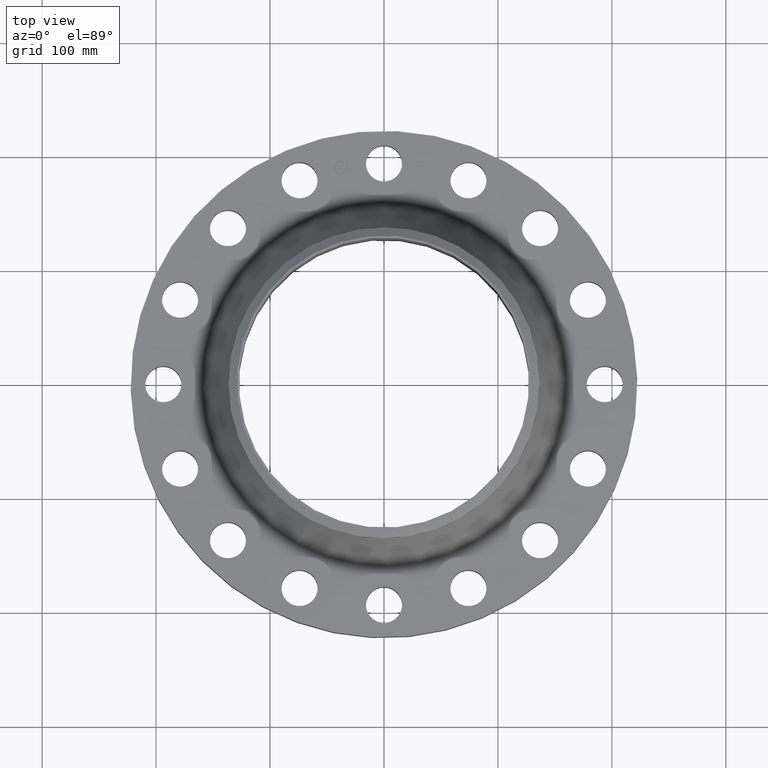
[diagram: clean part render]
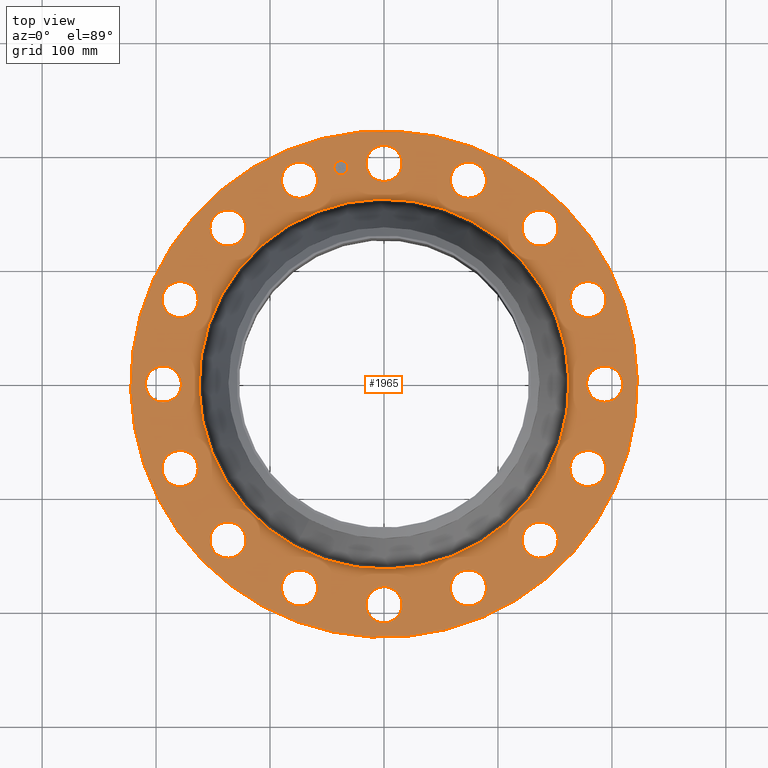
[diagram: same view with one face highlighted and labeled with its STEP entity id]
A machine part, top view. The second image highlights one B-rep face of the part: STEP entity #1965.
In plain terms, the highlighted planar face has unit normal (0, 0, -1).
Its self-contained STEP definition (entity closure, byte-faithful):
#65=AXIS2_PLACEMENT_3D('Circle Axis2P3D',#63,#64,$) ;
#89=AXIS2_PLACEMENT_3D('Circle Axis2P3D',#87,#88,$) ;
#123=AXIS2_PLACEMENT_3D('Circle Axis2P3D',#121,#122,$) ;
#147=AXIS2_PLACEMENT_3D('Circle Axis2P3D',#145,#146,$) ;
#164=AXIS2_PLACEMENT_3D('Circle Axis2P3D',#162,#163,$) ;
#199=AXIS2_PLACEMENT_3D('Circle Axis2P3D',#197,#198,$) ;
#999=AXIS2_PLACEMENT_3D('Circle Axis2P3D',#997,#998,$) ;
#1011=AXIS2_PLACEMENT_3D('Circle Axis2P3D',#1009,#1010,$) ;
#1043=AXIS2_PLACEMENT_3D('Circle Axis2P3D',#1041,#1042,$) ;
#1055=AXIS2_PLACEMENT_3D('Circle Axis2P3D',#1053,#1054,$) ;
#1087=AXIS2_PLACEMENT_3D('Circle Axis2P3D',#1085,#1086,$) ;
#1099=AXIS2_PLACEMENT_3D('Circle Axis2P3D',#1097,#1098,$) ;
#1131=AXIS2_PLACEMENT_3D('Circle Axis2P3D',#1129,#1130,$) ;
#1143=AXIS2_PLACEMENT_3D('Circle Axis2P3D',#1141,#1142,$) ;
#1175=AXIS2_PLACEMENT_3D('Circle Axis2P3D',#1173,#1174,$) ;
#1187=AXIS2_PLACEMENT_3D('Circle Axis2P3D',#1185,#1186,$) ;
#1219=AXIS2_PLACEMENT_3D('Circle Axis2P3D',#1217,#1218,$) ;
#1231=AXIS2_PLACEMENT_3D('Circle Axis2P3D',#1229,#1230,$) ;
#1263=AXIS2_PLACEMENT_3D('Circle Axis2P3D',#1261,#1262,$) ;
#1275=AXIS2_PLACEMENT_3D('Circle Axis2P3D',#1273,#1274,$) ;
#1307=AXIS2_PLACEMENT_3D('Circle Axis2P3D',#1305,#1306,$) ;
#1319=AXIS2_PLACEMENT_3D('Circle Axis2P3D',#1317,#1318,$) ;
#1351=AXIS2_PLACEMENT_3D('Circle Axis2P3D',#1349,#1350,$) ;
#1363=AXIS2_PLACEMENT_3D('Circle Axis2P3D',#1361,#1362,$) ;
#1395=AXIS2_PLACEMENT_3D('Circle Axis2P3D',#1393,#1394,$) ;
#1407=AXIS2_PLACEMENT_3D('Circle Axis2P3D',#1405,#1406,$) ;
#1439=AXIS2_PLACEMENT_3D('Circle Axis2P3D',#1437,#1438,$) ;
#1451=AXIS2_PLACEMENT_3D('Circle Axis2P3D',#1449,#1450,$) ;
#1483=AXIS2_PLACEMENT_3D('Circle Axis2P3D',#1481,#1482,$) ;
#1495=AXIS2_PLACEMENT_3D('Circle Axis2P3D',#1493,#1494,$) ;
#1527=AXIS2_PLACEMENT_3D('Circle Axis2P3D',#1525,#1526,$) ;
#1539=AXIS2_PLACEMENT_3D('Circle Axis2P3D',#1537,#1538,$) ;
#1571=AXIS2_PLACEMENT_3D('Circle Axis2P3D',#1569,#1570,$) ;
#1583=AXIS2_PLACEMENT_3D('Circle Axis2P3D',#1581,#1582,$) ;
#1615=AXIS2_PLACEMENT_3D('Circle Axis2P3D',#1613,#1614,$) ;
#1627=AXIS2_PLACEMENT_3D('Circle Axis2P3D',#1625,#1626,$) ;
#1873=AXIS2_PLACEMENT_3D('Plane Axis2P3D',#1870,#1871,#1872) ;
#1949=AXIS2_PLACEMENT_3D('Circle Axis2P3D',#1947,#1948,$) ;
#1958=AXIS2_PLACEMENT_3D('Circle Axis2P3D',#1956,#1957,$) ;
#46=CARTESIAN_POINT('Vertex',(-0.548489101184,7.92464096166,2.12000000001)) ;
#60=CARTESIAN_POINT('Vertex',(0.548489101184,7.3253590384,2.12000000001)) ;
#63=CARTESIAN_POINT('Axis2P3D Location',(0.,7.62500000003,2.12000000001)) ;
#87=CARTESIAN_POINT('Axis2P3D Location',(0.,7.62500000003,2.12000000001)) ;
#118=CARTESIAN_POINT('Vertex',(-4.1949734628,-7.67884741657,2.12000000001)) ;
#121=CARTESIAN_POINT('Axis2P3D Location',(0.,0.,2.12000000001)) ;
#125=CARTESIAN_POINT('Vertex',(4.1949734628,7.67884741657,2.12000000001)) ;
#145=CARTESIAN_POINT('Axis2P3D Location',(0.,0.,2.12000000001)) ;
#162=CARTESIAN_POINT('Axis2P3D Location',(0.,0.,2.12000000001)) ;
#166=CARTESIAN_POINT('Vertex',(3.06391680876,5.60846209879,2.12000000001)) ;
#168=CARTESIAN_POINT('Vertex',(-3.06391680876,-5.60846209879,2.12000000001)) ;
#197=CARTESIAN_POINT('Axis2P3D Location',(0.,0.,2.12000000001)) ;
#987=CARTESIAN_POINT('Vertex',(0.548489101184,-7.92464096166,2.12000000001)) ;
#994=CARTESIAN_POINT('Vertex',(-0.548489101184,-7.3253590384,2.12000000001)) ;
#997=CARTESIAN_POINT('Axis2P3D Location',(9.33793184354E-016,-7.62500000003,2.12000000001)) ;
#1009=CARTESIAN_POINT('Axis2P3D Location',(9.33793184354E-016,-7.62500000003,2.12000000001)) ;
#1031=CARTESIAN_POINT('Vertex',(-3.53936665786,7.11151589512,2.12000000001)) ;
#1038=CARTESIAN_POINT('Vertex',(-2.29655568573,6.97764697573,2.12000000001)) ;
#1041=CARTESIAN_POINT('Axis2P3D Location',(-2.9179611718,7.04458143543,2.12000000001)) ;
#1053=CARTESIAN_POINT('Axis2P3D Location',(-2.9179611718,7.04458143543,2.12000000001)) ;
#1075=CARTESIAN_POINT('Vertex',(3.53936665786,-7.11151589512,2.12000000001)) ;
#1082=CARTESIAN_POINT('Vertex',(2.29655568573,-6.97764697573,2.12000000001)) ;
#1085=CARTESIAN_POINT('Axis2P3D Location',(2.9179611718,-7.04458143543,2.12000000001)) ;
#1097=CARTESIAN_POINT('Axis2P3D Location',(2.9179611718,-7.04458143543,2.12000000001)) ;
#1119=CARTESIAN_POINT('Vertex',(2.52589094908,7.53131127883,2.12000000001)) ;
#1126=CARTESIAN_POINT('Vertex',(3.31003139451,6.55785159202,2.12000000001)) ;
#1129=CARTESIAN_POINT('Axis2P3D Location',(2.9179611718,7.04458143543,2.12000000001)) ;
#1141=CARTESIAN_POINT('Axis2P3D Location',(2.9179611718,7.04458143543,2.12000000001)) ;
#1163=CARTESIAN_POINT('Vertex',(-7.92464096166,-0.548489101184,2.12000000001)) ;
#1170=CARTESIAN_POINT('Vertex',(-7.3253590384,0.548489101184,2.12000000001)) ;
#1173=CARTESIAN_POINT('Axis2P3D Location',(-7.62500000003,-2.51965471474E-015,2.12000000001)) ;
#1185=CARTESIAN_POINT('Axis2P3D Location',(-7.62500000003,-2.51965471474E-015,2.12000000001)) ;
#1207=CARTESIAN_POINT('Vertex',(-7.53131127883,2.52589094908,2.12000000001)) ;
#1214=CARTESIAN_POINT('Vertex',(-6.55785159202,3.31003139451,2.12000000001)) ;
#1217=CARTESIAN_POINT('Axis2P3D Location',(-7.04458143543,2.9179611718,2.12000000001)) ;
#1229=CARTESIAN_POINT('Axis2P3D Location',(-7.04458143543,2.9179611718,2.12000000001)) ;
#1251=CARTESIAN_POINT('Vertex',(-5.2157269996,-5.99140772531,2.12000000001)) ;
#1258=CARTESIAN_POINT('Vertex',(-5.56765141353,-4.79197068783,2.12000000001)) ;
#1261=CARTESIAN_POINT('Axis2P3D Location',(-5.39168920657,-5.39168920657,2.12000000001)) ;
#1273=CARTESIAN_POINT('Axis2P3D Location',(-5.39168920657,-5.39168920657,2.12000000001)) ;
#1295=CARTESIAN_POINT('Vertex',(7.11151589512,3.53936665786,2.12000000001)) ;
#1302=CARTESIAN_POINT('Vertex',(6.97764697573,2.29655568573,2.12000000001)) ;
#1305=CARTESIAN_POINT('Axis2P3D Location',(7.04458143543,2.9179611718,2.12000000001)) ;
#1317=CARTESIAN_POINT('Axis2P3D Location',(7.04458143543,2.9179611718,2.12000000001)) ;
#1339=CARTESIAN_POINT('Vertex',(-5.99140772531,5.2157269996,2.12000000001)) ;
#1346=CARTESIAN_POINT('Vertex',(-4.79197068783,5.56765141353,2.12000000001)) ;
#1349=CARTESIAN_POINT('Axis2P3D Location',(-5.39168920657,5.39168920657,2.12000000001)) ;
#1361=CARTESIAN_POINT('Axis2P3D Location',(-5.39168920657,5.39168920657,2.12000000001)) ;
#1383=CARTESIAN_POINT('Vertex',(7.92464096166,0.548489101184,2.12000000001)) ;
#1390=CARTESIAN_POINT('Vertex',(7.3253590384,-0.548489101184,2.12000000001)) ;
#1393=CARTESIAN_POINT('Axis2P3D Location',(7.62500000003,4.66896592177E-016,2.12000000001)) ;
#1405=CARTESIAN_POINT('Axis2P3D Location',(7.62500000003,4.66896592177E-016,2.12000000001)) ;
#1427=CARTESIAN_POINT('Vertex',(-2.52589094908,-7.53131127883,2.12000000001)) ;
#1434=CARTESIAN_POINT('Vertex',(-3.31003139451,-6.55785159202,2.12000000001)) ;
#1437=CARTESIAN_POINT('Axis2P3D Location',(-2.9179611718,-7.04458143543,2.12000000001)) ;
#1449=CARTESIAN_POINT('Axis2P3D Location',(-2.9179611718,-7.04458143543,2.12000000001)) ;
#1471=CARTESIAN_POINT('Vertex',(7.53131127883,-2.52589094908,2.12000000001)) ;
#1478=CARTESIAN_POINT('Vertex',(6.55785159202,-3.31003139451,2.12000000001)) ;
#1481=CARTESIAN_POINT('Axis2P3D Location',(7.04458143543,-2.9179611718,2.12000000001)) ;
#1493=CARTESIAN_POINT('Axis2P3D Location',(7.04458143543,-2.9179611718,2.12000000001)) ;
#1515=CARTESIAN_POINT('Vertex',(-7.11151589512,-3.53936665786,2.12000000001)) ;
#1522=CARTESIAN_POINT('Vertex',(-6.97764697573,-2.29655568573,2.12000000001)) ;
#1525=CARTESIAN_POINT('Axis2P3D Location',(-7.04458143543,-2.9179611718,2.12000000001)) ;
#1537=CARTESIAN_POINT('Axis2P3D Location',(-7.04458143543,-2.9179611718,2.12000000001)) ;
#1559=CARTESIAN_POINT('Vertex',(5.99140772531,-5.2157269996,2.12000000001)) ;
#1566=CARTESIAN_POINT('Vertex',(4.79197068783,-5.56765141353,2.12000000001)) ;
#1569=CARTESIAN_POINT('Axis2P3D Location',(5.39168920657,-5.39168920657,2.12000000001)) ;
#1581=CARTESIAN_POINT('Axis2P3D Location',(5.39168920657,-5.39168920657,2.12000000001)) ;
#1603=CARTESIAN_POINT('Vertex',(5.2157269996,5.99140772531,2.12000000001)) ;
#1610=CARTESIAN_POINT('Vertex',(5.56765141353,4.79197068783,2.12000000001)) ;
#1613=CARTESIAN_POINT('Axis2P3D Location',(5.39168920657,5.39168920657,2.12000000001)) ;
#1625=CARTESIAN_POINT('Axis2P3D Location',(5.39168920657,5.39168920657,2.12000000001)) ;
#1870=CARTESIAN_POINT('Axis2P3D Location',(0.,8.75000000003,2.12000000001)) ;
#1947=CARTESIAN_POINT('Axis2P3D Location',(-1.48756370538,7.4784877631,2.12000000001)) ;
#1951=CARTESIAN_POINT('Vertex',(-1.73030806228,7.43020290841,2.12000000001)) ;
#1953=CARTESIAN_POINT('Vertex',(-1.24481934848,7.5267726178,2.12000000001)) ;
#1956=CARTESIAN_POINT('Axis2P3D Location',(-1.48756370538,7.4784877631,2.12000000001)) ;
#64=DIRECTION('Axis2P3D Direction',(0.,-0.,-0.0393700787402)) ;
#88=DIRECTION('Axis2P3D Direction',(0.,-0.,-0.0393700787402)) ;
#122=DIRECTION('Axis2P3D Direction',(0.,0.,-0.0393700787402)) ;
#146=DIRECTION('Axis2P3D Direction',(0.,0.,-0.0393700787402)) ;
#163=DIRECTION('Axis2P3D Direction',(0.,0.,-0.0393700787402)) ;
#198=DIRECTION('Axis2P3D Direction',(0.,0.,-0.0393700787402)) ;
#998=DIRECTION('Axis2P3D Direction',(-0.,0.,-0.0393700787402)) ;
#1010=DIRECTION('Axis2P3D Direction',(-0.,0.,-0.0393700787402)) ;
#1042=DIRECTION('Axis2P3D Direction',(0.,0.,-0.0393700787402)) ;
#1054=DIRECTION('Axis2P3D Direction',(0.,0.,-0.0393700787402)) ;
#1086=DIRECTION('Axis2P3D Direction',(-0.,0.,-0.0393700787402)) ;
#1098=DIRECTION('Axis2P3D Direction',(-0.,0.,-0.0393700787402)) ;
#1130=DIRECTION('Axis2P3D Direction',(0.,-0.,-0.0393700787402)) ;
#1142=DIRECTION('Axis2P3D Direction',(0.,-0.,-0.0393700787402)) ;
#1174=DIRECTION('Axis2P3D Direction',(0.,0.,-0.0393700787402)) ;
#1186=DIRECTION('Axis2P3D Direction',(0.,0.,-0.0393700787402)) ;
#1218=DIRECTION('Axis2P3D Direction',(0.,0.,-0.0393700787402)) ;
#1230=DIRECTION('Axis2P3D Direction',(0.,0.,-0.0393700787402)) ;
#1262=DIRECTION('Axis2P3D Direction',(0.,0.,-0.0393700787402)) ;
#1274=DIRECTION('Axis2P3D Direction',(0.,0.,-0.0393700787402)) ;
#1306=DIRECTION('Axis2P3D Direction',(0.,-0.,-0.0393700787402)) ;
#1318=DIRECTION('Axis2P3D Direction',(0.,-0.,-0.0393700787402)) ;
#1350=DIRECTION('Axis2P3D Direction',(0.,0.,-0.0393700787402)) ;
#1362=DIRECTION('Axis2P3D Direction',(0.,0.,-0.0393700787402)) ;
#1394=DIRECTION('Axis2P3D Direction',(0.,-0.,-0.0393700787402)) ;
#1406=DIRECTION('Axis2P3D Direction',(0.,-0.,-0.0393700787402)) ;
#1438=DIRECTION('Axis2P3D Direction',(0.,0.,-0.0393700787402)) ;
#1450=DIRECTION('Axis2P3D Direction',(0.,0.,-0.0393700787402)) ;
#1482=DIRECTION('Axis2P3D Direction',(-0.,0.,-0.0393700787402)) ;
#1494=DIRECTION('Axis2P3D Direction',(-0.,0.,-0.0393700787402)) ;
#1526=DIRECTION('Axis2P3D Direction',(0.,0.,-0.0393700787402)) ;
#1538=DIRECTION('Axis2P3D Direction',(0.,0.,-0.0393700787402)) ;
#1570=DIRECTION('Axis2P3D Direction',(-0.,0.,-0.0393700787402)) ;
#1582=DIRECTION('Axis2P3D Direction',(-0.,0.,-0.0393700787402)) ;
#1614=DIRECTION('Axis2P3D Direction',(0.,-0.,-0.0393700787402)) ;
#1626=DIRECTION('Axis2P3D Direction',(0.,-0.,-0.0393700787402)) ;
#1871=DIRECTION('Axis2P3D Direction',(0.,0.,-0.0393700787402)) ;
#1872=DIRECTION('Axis2P3D XDirection',(0.0393700787402,0.,0.)) ;
#1948=DIRECTION('Axis2P3D Direction',(0.,0.,-0.0393700787402)) ;
#1957=DIRECTION('Axis2P3D Direction',(0.,0.,-0.0393700787402)) ;
#1876=ORIENTED_EDGE('',*,*,#149,.F.) ;
#1877=ORIENTED_EDGE('',*,*,#127,.F.) ;
#1880=ORIENTED_EDGE('',*,*,#67,.T.) ;
#1881=ORIENTED_EDGE('',*,*,#91,.T.) ;
#1884=ORIENTED_EDGE('',*,*,#201,.T.) ;
#1885=ORIENTED_EDGE('',*,*,#170,.T.) ;
#1888=ORIENTED_EDGE('',*,*,#1145,.T.) ;
#1889=ORIENTED_EDGE('',*,*,#1133,.T.) ;
#1892=ORIENTED_EDGE('',*,*,#1629,.T.) ;
#1893=ORIENTED_EDGE('',*,*,#1617,.T.) ;
#1896=ORIENTED_EDGE('',*,*,#1321,.T.) ;
#1897=ORIENTED_EDGE('',*,*,#1309,.T.) ;
#1900=ORIENTED_EDGE('',*,*,#1409,.T.) ;
#1901=ORIENTED_EDGE('',*,*,#1397,.T.) ;
#1904=ORIENTED_EDGE('',*,*,#1497,.T.) ;
#1905=ORIENTED_EDGE('',*,*,#1485,.T.) ;
#1908=ORIENTED_EDGE('',*,*,#1585,.T.) ;
#1909=ORIENTED_EDGE('',*,*,#1573,.T.) ;
#1912=ORIENTED_EDGE('',*,*,#1101,.T.) ;
#1913=ORIENTED_EDGE('',*,*,#1089,.T.) ;
#1916=ORIENTED_EDGE('',*,*,#1013,.T.) ;
#1917=ORIENTED_EDGE('',*,*,#1001,.T.) ;
#1920=ORIENTED_EDGE('',*,*,#1453,.T.) ;
#1921=ORIENTED_EDGE('',*,*,#1441,.T.) ;
#1924=ORIENTED_EDGE('',*,*,#1277,.T.) ;
#1925=ORIENTED_EDGE('',*,*,#1265,.T.) ;
#1928=ORIENTED_EDGE('',*,*,#1541,.T.) ;
#1929=ORIENTED_EDGE('',*,*,#1529,.T.) ;
#1932=ORIENTED_EDGE('',*,*,#1189,.T.) ;
#1933=ORIENTED_EDGE('',*,*,#1177,.T.) ;
#1936=ORIENTED_EDGE('',*,*,#1233,.T.) ;
#1937=ORIENTED_EDGE('',*,*,#1221,.T.) ;
#1940=ORIENTED_EDGE('',*,*,#1365,.T.) ;
#1941=ORIENTED_EDGE('',*,*,#1353,.T.) ;
#1944=ORIENTED_EDGE('',*,*,#1057,.T.) ;
#1945=ORIENTED_EDGE('',*,*,#1045,.T.) ;
#1962=ORIENTED_EDGE('',*,*,#1955,.T.) ;
#1963=ORIENTED_EDGE('',*,*,#1960,.T.) ;
#1882=FACE_BOUND('',#1879,.T.) ;
#1886=FACE_BOUND('',#1883,.T.) ;
#1890=FACE_BOUND('',#1887,.T.) ;
#1894=FACE_BOUND('',#1891,.T.) ;
#1898=FACE_BOUND('',#1895,.T.) ;
#1902=FACE_BOUND('',#1899,.T.) ;
#1906=FACE_BOUND('',#1903,.T.) ;
#1910=FACE_BOUND('',#1907,.T.) ;
#1914=FACE_BOUND('',#1911,.T.) ;
#1918=FACE_BOUND('',#1915,.T.) ;
#1922=FACE_BOUND('',#1919,.T.) ;
#1926=FACE_BOUND('',#1923,.T.) ;
#1930=FACE_BOUND('',#1927,.T.) ;
#1934=FACE_BOUND('',#1931,.T.) ;
#1938=FACE_BOUND('',#1935,.T.) ;
#1942=FACE_BOUND('',#1939,.T.) ;
#1946=FACE_BOUND('',#1943,.T.) ;
#1964=FACE_BOUND('',#1961,.T.) ;
#1965=ADVANCED_FACE('PartBody',(#1878,#1882,#1886,#1890,#1894,#1898,#1902,#1906,#1910,#1914,#1918,#1922,#1926,#1930,#1934,#1938,#1942,#1946,#1964),#1874,.F.) ;
#66=CIRCLE('generated circle',#65,0.625000000003) ;
#90=CIRCLE('generated circle',#89,0.625000000003) ;
#124=CIRCLE('generated circle',#123,8.75000000003) ;
#148=CIRCLE('generated circle',#147,8.75000000003) ;
#165=CIRCLE('generated circle',#164,6.3908085032) ;
#200=CIRCLE('generated circle',#199,6.3908085032) ;
#1000=CIRCLE('generated circle',#999,0.625000000003) ;
#1012=CIRCLE('generated circle',#1011,0.625000000003) ;
#1044=CIRCLE('generated circle',#1043,0.625000000002) ;
#1056=CIRCLE('generated circle',#1055,0.625000000002) ;
#1088=CIRCLE('generated circle',#1087,0.625000000003) ;
#1100=CIRCLE('generated circle',#1099,0.625000000003) ;
#1132=CIRCLE('generated circle',#1131,0.625000000003) ;
#1144=CIRCLE('generated circle',#1143,0.625000000003) ;
#1176=CIRCLE('generated circle',#1175,0.625000000003) ;
#1188=CIRCLE('generated circle',#1187,0.625000000003) ;
#1220=CIRCLE('generated circle',#1219,0.625000000003) ;
#1232=CIRCLE('generated circle',#1231,0.625000000003) ;
#1264=CIRCLE('generated circle',#1263,0.625000000002) ;
#1276=CIRCLE('generated circle',#1275,0.625000000002) ;
#1308=CIRCLE('generated circle',#1307,0.625000000003) ;
#1320=CIRCLE('generated circle',#1319,0.625000000003) ;
#1352=CIRCLE('generated circle',#1351,0.625000000002) ;
#1364=CIRCLE('generated circle',#1363,0.625000000002) ;
#1396=CIRCLE('generated circle',#1395,0.625000000003) ;
#1408=CIRCLE('generated circle',#1407,0.625000000003) ;
#1440=CIRCLE('generated circle',#1439,0.625000000002) ;
#1452=CIRCLE('generated circle',#1451,0.625000000002) ;
#1484=CIRCLE('generated circle',#1483,0.625000000002) ;
#1496=CIRCLE('generated circle',#1495,0.625000000002) ;
#1528=CIRCLE('generated circle',#1527,0.625000000002) ;
#1540=CIRCLE('generated circle',#1539,0.625000000002) ;
#1572=CIRCLE('generated circle',#1571,0.625000000002) ;
#1584=CIRCLE('generated circle',#1583,0.625000000002) ;
#1616=CIRCLE('generated circle',#1615,0.625000000002) ;
#1628=CIRCLE('generated circle',#1627,0.625000000002) ;
#1950=CIRCLE('generated circle',#1949,0.247500000001) ;
#1959=CIRCLE('generated circle',#1958,0.247500000001) ;
#67=EDGE_CURVE('',#47,#61,#66,.T.) ;
#91=EDGE_CURVE('',#61,#47,#90,.T.) ;
#127=EDGE_CURVE('',#119,#126,#124,.T.) ;
#149=EDGE_CURVE('',#126,#119,#148,.T.) ;
#170=EDGE_CURVE('',#167,#169,#165,.T.) ;
#201=EDGE_CURVE('',#169,#167,#200,.T.) ;
#1001=EDGE_CURVE('',#988,#995,#1000,.T.) ;
#1013=EDGE_CURVE('',#995,#988,#1012,.T.) ;
#1045=EDGE_CURVE('',#1032,#1039,#1044,.T.) ;
#1057=EDGE_CURVE('',#1039,#1032,#1056,.T.) ;
#1089=EDGE_CURVE('',#1076,#1083,#1088,.T.) ;
#1101=EDGE_CURVE('',#1083,#1076,#1100,.T.) ;
#1133=EDGE_CURVE('',#1120,#1127,#1132,.T.) ;
#1145=EDGE_CURVE('',#1127,#1120,#1144,.T.) ;
#1177=EDGE_CURVE('',#1164,#1171,#1176,.T.) ;
#1189=EDGE_CURVE('',#1171,#1164,#1188,.T.) ;
#1221=EDGE_CURVE('',#1208,#1215,#1220,.T.) ;
#1233=EDGE_CURVE('',#1215,#1208,#1232,.T.) ;
#1265=EDGE_CURVE('',#1252,#1259,#1264,.T.) ;
#1277=EDGE_CURVE('',#1259,#1252,#1276,.T.) ;
#1309=EDGE_CURVE('',#1296,#1303,#1308,.T.) ;
#1321=EDGE_CURVE('',#1303,#1296,#1320,.T.) ;
#1353=EDGE_CURVE('',#1340,#1347,#1352,.T.) ;
#1365=EDGE_CURVE('',#1347,#1340,#1364,.T.) ;
#1397=EDGE_CURVE('',#1384,#1391,#1396,.T.) ;
#1409=EDGE_CURVE('',#1391,#1384,#1408,.T.) ;
#1441=EDGE_CURVE('',#1428,#1435,#1440,.T.) ;
#1453=EDGE_CURVE('',#1435,#1428,#1452,.T.) ;
#1485=EDGE_CURVE('',#1472,#1479,#1484,.T.) ;
#1497=EDGE_CURVE('',#1479,#1472,#1496,.T.) ;
#1529=EDGE_CURVE('',#1516,#1523,#1528,.T.) ;
#1541=EDGE_CURVE('',#1523,#1516,#1540,.T.) ;
#1573=EDGE_CURVE('',#1560,#1567,#1572,.T.) ;
#1585=EDGE_CURVE('',#1567,#1560,#1584,.T.) ;
#1617=EDGE_CURVE('',#1604,#1611,#1616,.T.) ;
#1629=EDGE_CURVE('',#1611,#1604,#1628,.T.) ;
#1955=EDGE_CURVE('',#1952,#1954,#1950,.T.) ;
#1960=EDGE_CURVE('',#1954,#1952,#1959,.T.) ;
#1875=EDGE_LOOP('',(#1876,#1877)) ;
#1879=EDGE_LOOP('',(#1880,#1881)) ;
#1883=EDGE_LOOP('',(#1884,#1885)) ;
#1887=EDGE_LOOP('',(#1888,#1889)) ;
#1891=EDGE_LOOP('',(#1892,#1893)) ;
#1895=EDGE_LOOP('',(#1896,#1897)) ;
#1899=EDGE_LOOP('',(#1900,#1901)) ;
#1903=EDGE_LOOP('',(#1904,#1905)) ;
#1907=EDGE_LOOP('',(#1908,#1909)) ;
#1911=EDGE_LOOP('',(#1912,#1913)) ;
#1915=EDGE_LOOP('',(#1916,#1917)) ;
#1919=EDGE_LOOP('',(#1920,#1921)) ;
#1923=EDGE_LOOP('',(#1924,#1925)) ;
#1927=EDGE_LOOP('',(#1928,#1929)) ;
#1931=EDGE_LOOP('',(#1932,#1933)) ;
#1935=EDGE_LOOP('',(#1936,#1937)) ;
#1939=EDGE_LOOP('',(#1940,#1941)) ;
#1943=EDGE_LOOP('',(#1944,#1945)) ;
#1961=EDGE_LOOP('',(#1962,#1963)) ;
#1878=FACE_OUTER_BOUND('',#1875,.T.) ;
#1874=PLANE('',#1873) ;
#47=VERTEX_POINT('',#46) ;
#61=VERTEX_POINT('',#60) ;
#119=VERTEX_POINT('',#118) ;
#126=VERTEX_POINT('',#125) ;
#167=VERTEX_POINT('',#166) ;
#169=VERTEX_POINT('',#168) ;
#988=VERTEX_POINT('',#987) ;
#995=VERTEX_POINT('',#994) ;
#1032=VERTEX_POINT('',#1031) ;
#1039=VERTEX_POINT('',#1038) ;
#1076=VERTEX_POINT('',#1075) ;
#1083=VERTEX_POINT('',#1082) ;
#1120=VERTEX_POINT('',#1119) ;
#1127=VERTEX_POINT('',#1126) ;
#1164=VERTEX_POINT('',#1163) ;
#1171=VERTEX_POINT('',#1170) ;
#1208=VERTEX_POINT('',#1207) ;
#1215=VERTEX_POINT('',#1214) ;
#1252=VERTEX_POINT('',#1251) ;
#1259=VERTEX_POINT('',#1258) ;
#1296=VERTEX_POINT('',#1295) ;
#1303=VERTEX_POINT('',#1302) ;
#1340=VERTEX_POINT('',#1339) ;
#1347=VERTEX_POINT('',#1346) ;
#1384=VERTEX_POINT('',#1383) ;
#1391=VERTEX_POINT('',#1390) ;
#1428=VERTEX_POINT('',#1427) ;
#1435=VERTEX_POINT('',#1434) ;
#1472=VERTEX_POINT('',#1471) ;
#1479=VERTEX_POINT('',#1478) ;
#1516=VERTEX_POINT('',#1515) ;
#1523=VERTEX_POINT('',#1522) ;
#1560=VERTEX_POINT('',#1559) ;
#1567=VERTEX_POINT('',#1566) ;
#1604=VERTEX_POINT('',#1603) ;
#1611=VERTEX_POINT('',#1610) ;
#1952=VERTEX_POINT('',#1951) ;
#1954=VERTEX_POINT('',#1953) ;